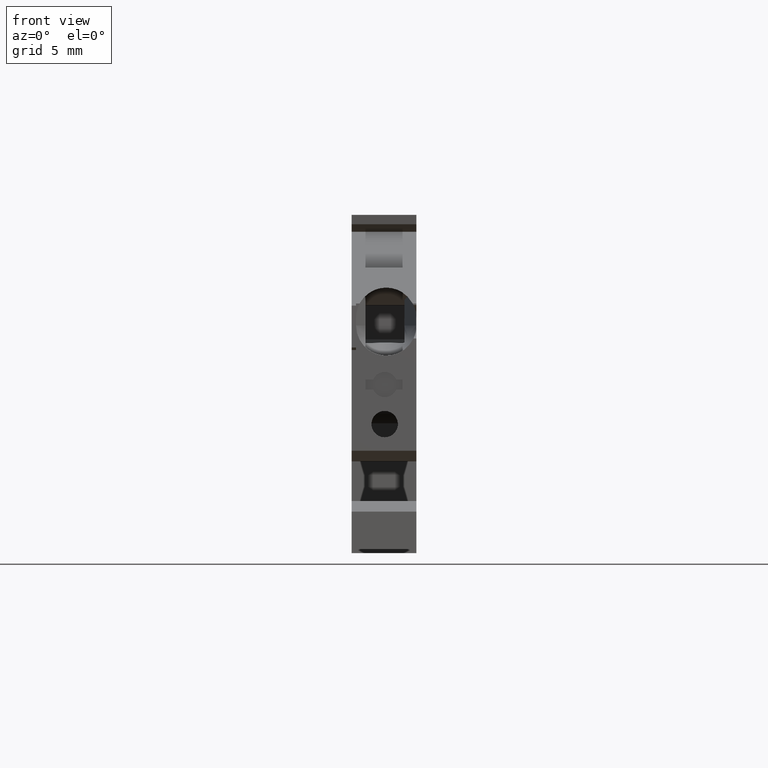
[diagram: clean part render]
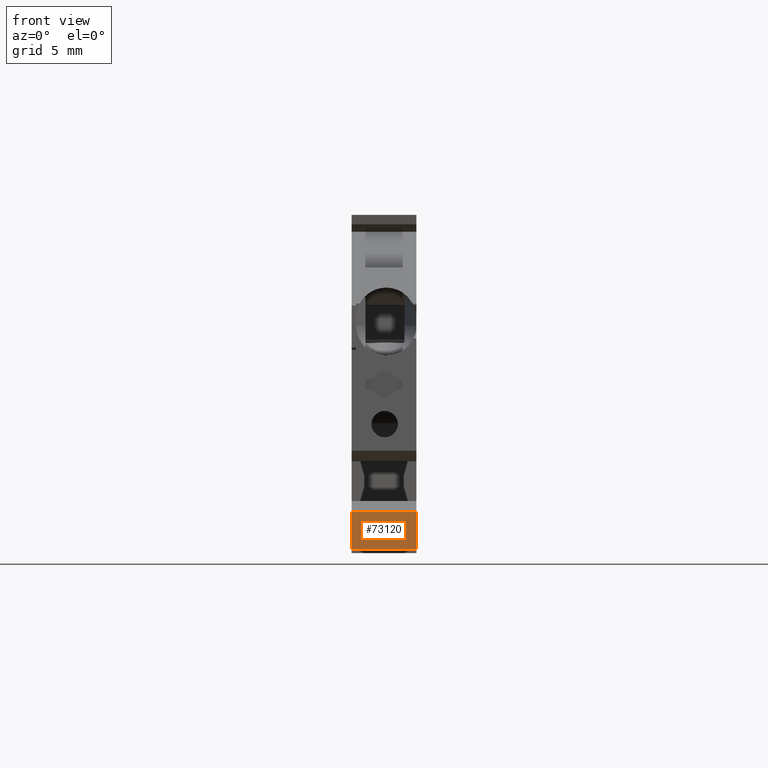
[diagram: same view with one face highlighted and labeled with its STEP entity id]
A machine part, front view. The second image highlights one B-rep face of the part: STEP entity #73120.
In plain terms, the highlighted planar face has unit normal (0, 1, -0).
Its self-contained STEP definition (entity closure, byte-faithful):
#11890=CARTESIAN_POINT('',(420.453158663915,670.934347839225,
117.119999990618));
#11900=DIRECTION('',(2.77555658686447E-10,-6.21204082400003E-11,1.));
#11910=VECTOR('',#11900,1.);
#11920=LINE('',#11890,#11910);
#11930=CARTESIAN_POINT('',(420.453158662165,670.934347841852,
96.519999996764));
#11940=VERTEX_POINT('',#11930);
#11950=CARTESIAN_POINT('',(420.453158663429,670.934347860169,
101.66999999358));
#11960=VERTEX_POINT('',#11950);
#11970=EDGE_CURVE('',#11940,#11960,#11920,.T.);
#40970=CARTESIAN_POINT('',(420.453158672775,686.450091623546,
101.669999995562));
#40980=DIRECTION('',(-6.02397798310578E-10,-1.,-1.27710674900949E-10));
#40990=VECTOR('',#40980,1.);
#41000=LINE('',#40970,#40990);
#41010=CARTESIAN_POINT('',(420.453158665239,673.938901647897,
101.669999993964));
#41020=VERTEX_POINT('',#41010);
#41030=EDGE_CURVE('',#41020,#11960,#41000,.T.);
#51400=CARTESIAN_POINT('',(420.453158666149,673.938901651399,
117.119999990656));
#51410=DIRECTION('',(2.77555658620293E-10,-1.51092301826943E-10,1.));
#51420=VECTOR('',#51410,1.);
#51430=LINE('',#51400,#51420);
#51440=CARTESIAN_POINT('',(420.453158663975,673.938901656009,
96.5199999968635));
#51450=VERTEX_POINT('',#51440);
#51460=EDGE_CURVE('',#51450,#41020,#51430,.T.);
#57810=CARTESIAN_POINT('',(420.453158678504,695.959358943647,
101.669999992552));
#57820=DIRECTION('',(1.,-6.02397742791251E-10,-2.45404184838055E-10));
#57830=DIRECTION('',(-6.02397742799373E-10,-1.,-3.30975414807419E-11));
#57840=AXIS2_PLACEMENT_3D('',#57810,#57820,#57830);
#57850=PLANE('',#57840);
#58370=CARTESIAN_POINT('',(420.453158671512,686.450091725288,
96.5200000014851));
#58380=DIRECTION('',(-6.02397798310678E-10,-1.,-3.04276823039866E-10));
#58390=VECTOR('',#58380,1.);
#58400=LINE('',#58370,#58390);
#60830=EDGE_CURVE('',#51450,#11940,#58400,.T.);
#73060=ORIENTED_EDGE('',*,*,#11970,.T.);
#73070=ORIENTED_EDGE('',*,*,#60830,.T.);
#73080=ORIENTED_EDGE('',*,*,#51460,.F.);
#73090=ORIENTED_EDGE('',*,*,#41030,.F.);
#73100=EDGE_LOOP('',(#73090,#73080,#73070,#73060));
#73110=FACE_OUTER_BOUND('',#73100,.T.);
#73120=ADVANCED_FACE('',(#73110),#57850,.F.);